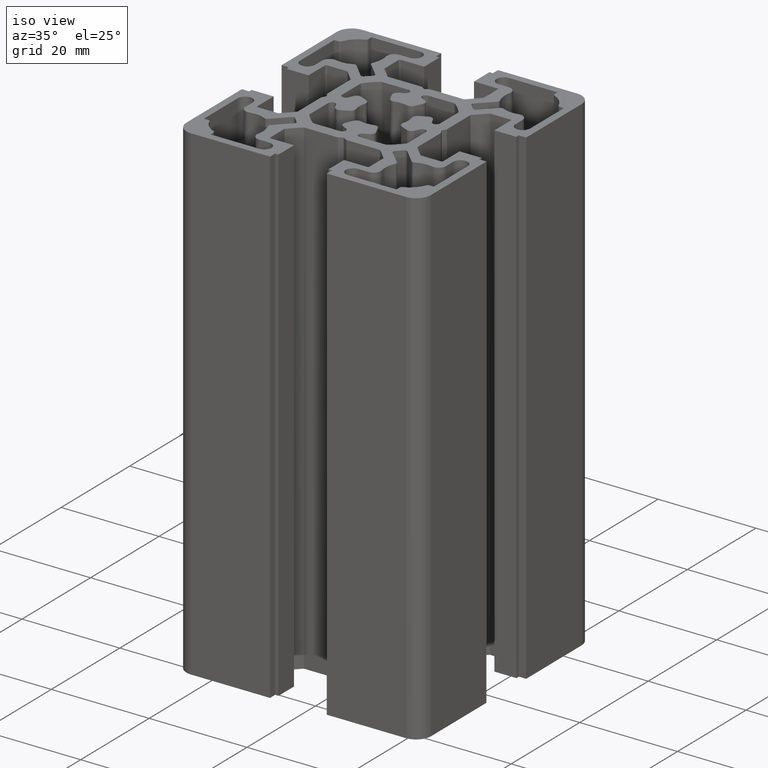
[diagram: clean part render]
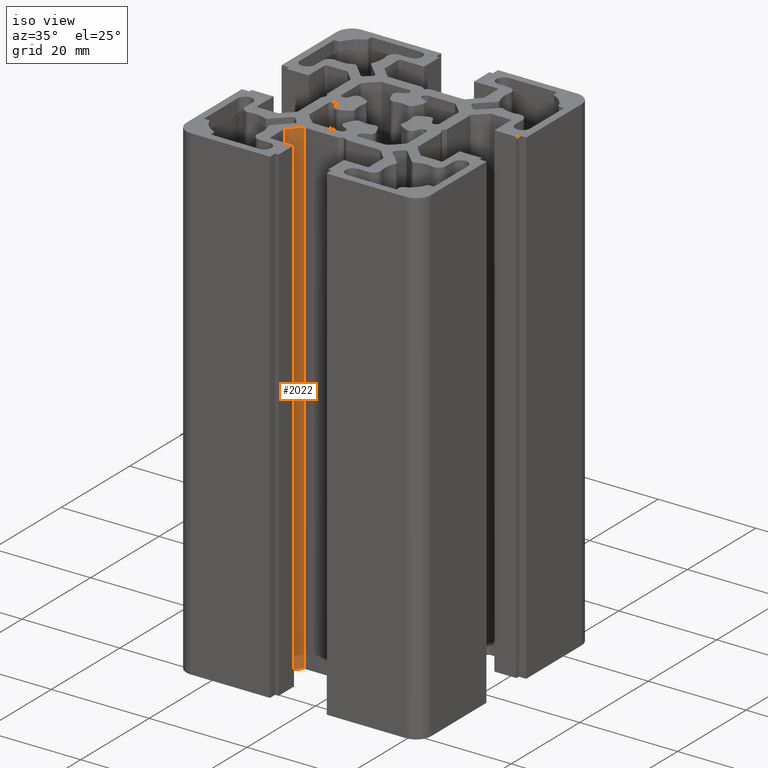
[diagram: same view with one face highlighted and labeled with its STEP entity id]
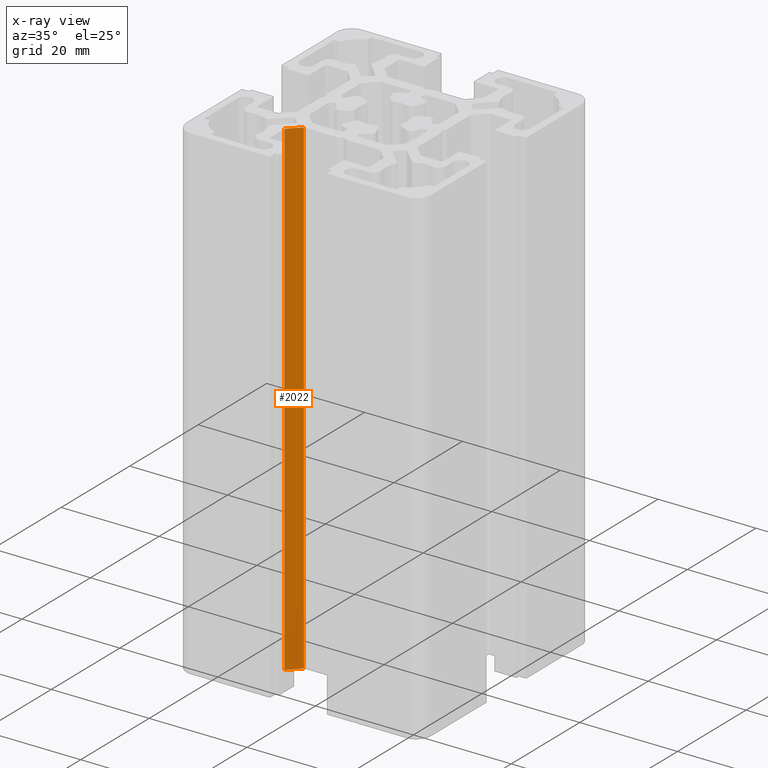
[diagram: x-ray of the same camera — body ghosted, the highlighted face saturated]
A machine part, iso view. The second image highlights one B-rep face of the part: STEP entity #2022.
The next image is the same camera in x-ray: the body ghosted, the highlighted face saturated — about 0% of this face is hidden behind the body in this view.
In plain terms, the highlighted planar face has unit normal (-0.7071, 0.7071, 0).
Its self-contained STEP definition (entity closure, byte-faithful):
#1495 = VERTEX_POINT ( 'NONE', #5666 ) ;
#1541 = EDGE_CURVE ( 'NONE', #1495, #1556, #5713, .T. ) ;
#1556 = VERTEX_POINT ( 'NONE', #5745 ) ;
#2019 = ORIENTED_EDGE ( 'NONE', *, *, #2023, .F. ) ;
#2020 = EDGE_LOOP ( 'NONE', ( #2031, #2019, #2071, #2025 ) ) ;
#2022 = ADVANCED_FACE ( 'NONE', ( #6515 ), #6504, .F. ) ;
#2023 = EDGE_CURVE ( 'NONE', #3043, #1556, #6556, .T. ) ;
#2025 = ORIENTED_EDGE ( 'NONE', *, *, #2034, .T. ) ;
#2031 = ORIENTED_EDGE ( 'NONE', *, *, #1541, .T. ) ;
#2034 = EDGE_CURVE ( 'NONE', #3055, #1495, #6539, .T. ) ;
#2071 = ORIENTED_EDGE ( 'NONE', *, *, #3040, .F. ) ;
#3040 = EDGE_CURVE ( 'NONE', #3055, #3043, #8027, .T. ) ;
#3043 = VERTEX_POINT ( 'NONE', #8066 ) ;
#3055 = VERTEX_POINT ( 'NONE', #8048 ) ;
#5666 = CARTESIAN_POINT ( 'NONE',  ( -10.12499999999998900, -14.57499999999999000, 0.0000000000000000000 ) ) ;
#5710 = DIRECTION ( 'NONE',  ( 0.7071067811865480200, 0.7071067811865470200, -0.0000000000000000000 ) ) ;
#5711 = VECTOR ( 'NONE', #5710, 1000.000000000000000 ) ;
#5712 = CARTESIAN_POINT ( 'NONE',  ( -7.799999999999996300, -12.25000000000000000, 0.0000000000000000000 ) ) ;
#5713 = LINE ( 'NONE', #5712, #5711 ) ;
#5745 = CARTESIAN_POINT ( 'NONE',  ( -7.799999999999996300, -12.25000000000000000, 0.0000000000000000000 ) ) ;
#6504 = PLANE ( 'NONE',  #6505 ) ;
#6505 = AXIS2_PLACEMENT_3D ( 'NONE', #6551, #6550, #6549 ) ;
#6515 = FACE_OUTER_BOUND ( 'NONE', #2020, .T. ) ;
#6536 = DIRECTION ( 'NONE',  ( -0.0000000000000000000, -0.0000000000000000000, -1.000000000000000000 ) ) ;
#6537 = VECTOR ( 'NONE', #6536, 1000.000000000000000 ) ;
#6538 = CARTESIAN_POINT ( 'NONE',  ( -10.12499999999998900, -14.57499999999999000, 100.0000000000000000 ) ) ;
#6539 = LINE ( 'NONE', #6538, #6537 ) ;
#6545 = DIRECTION ( 'NONE',  ( -0.0000000000000000000, -0.0000000000000000000, -1.000000000000000000 ) ) ;
#6546 = VECTOR ( 'NONE', #6545, 1000.000000000000000 ) ;
#6549 = DIRECTION ( 'NONE',  ( -0.7071067811865480200, -0.7071067811865470200, 0.0000000000000000000 ) ) ;
#6550 = DIRECTION ( 'NONE',  ( -0.7071067811865470200, 0.7071067811865480200, 0.0000000000000000000 ) ) ;
#6551 = CARTESIAN_POINT ( 'NONE',  ( -7.799999999999996300, -12.25000000000000000, 100.0000000000000000 ) ) ;
#6555 = CARTESIAN_POINT ( 'NONE',  ( -7.799999999999996300, -12.25000000000000000, 100.0000000000000000 ) ) ;
#6556 = LINE ( 'NONE', #6555, #6546 ) ;
#8023 = CARTESIAN_POINT ( 'NONE',  ( -7.799999999999996300, -12.25000000000000000, 100.0000000000000000 ) ) ;
#8027 = LINE ( 'NONE', #8023, #8069 ) ;
#8048 = CARTESIAN_POINT ( 'NONE',  ( -10.12499999999998900, -14.57499999999999000, 100.0000000000000000 ) ) ;
#8066 = CARTESIAN_POINT ( 'NONE',  ( -7.799999999999996300, -12.25000000000000000, 100.0000000000000000 ) ) ;
#8068 = DIRECTION ( 'NONE',  ( 0.7071067811865480200, 0.7071067811865470200, -0.0000000000000000000 ) ) ;
#8069 = VECTOR ( 'NONE', #8068, 1000.000000000000000 ) ;